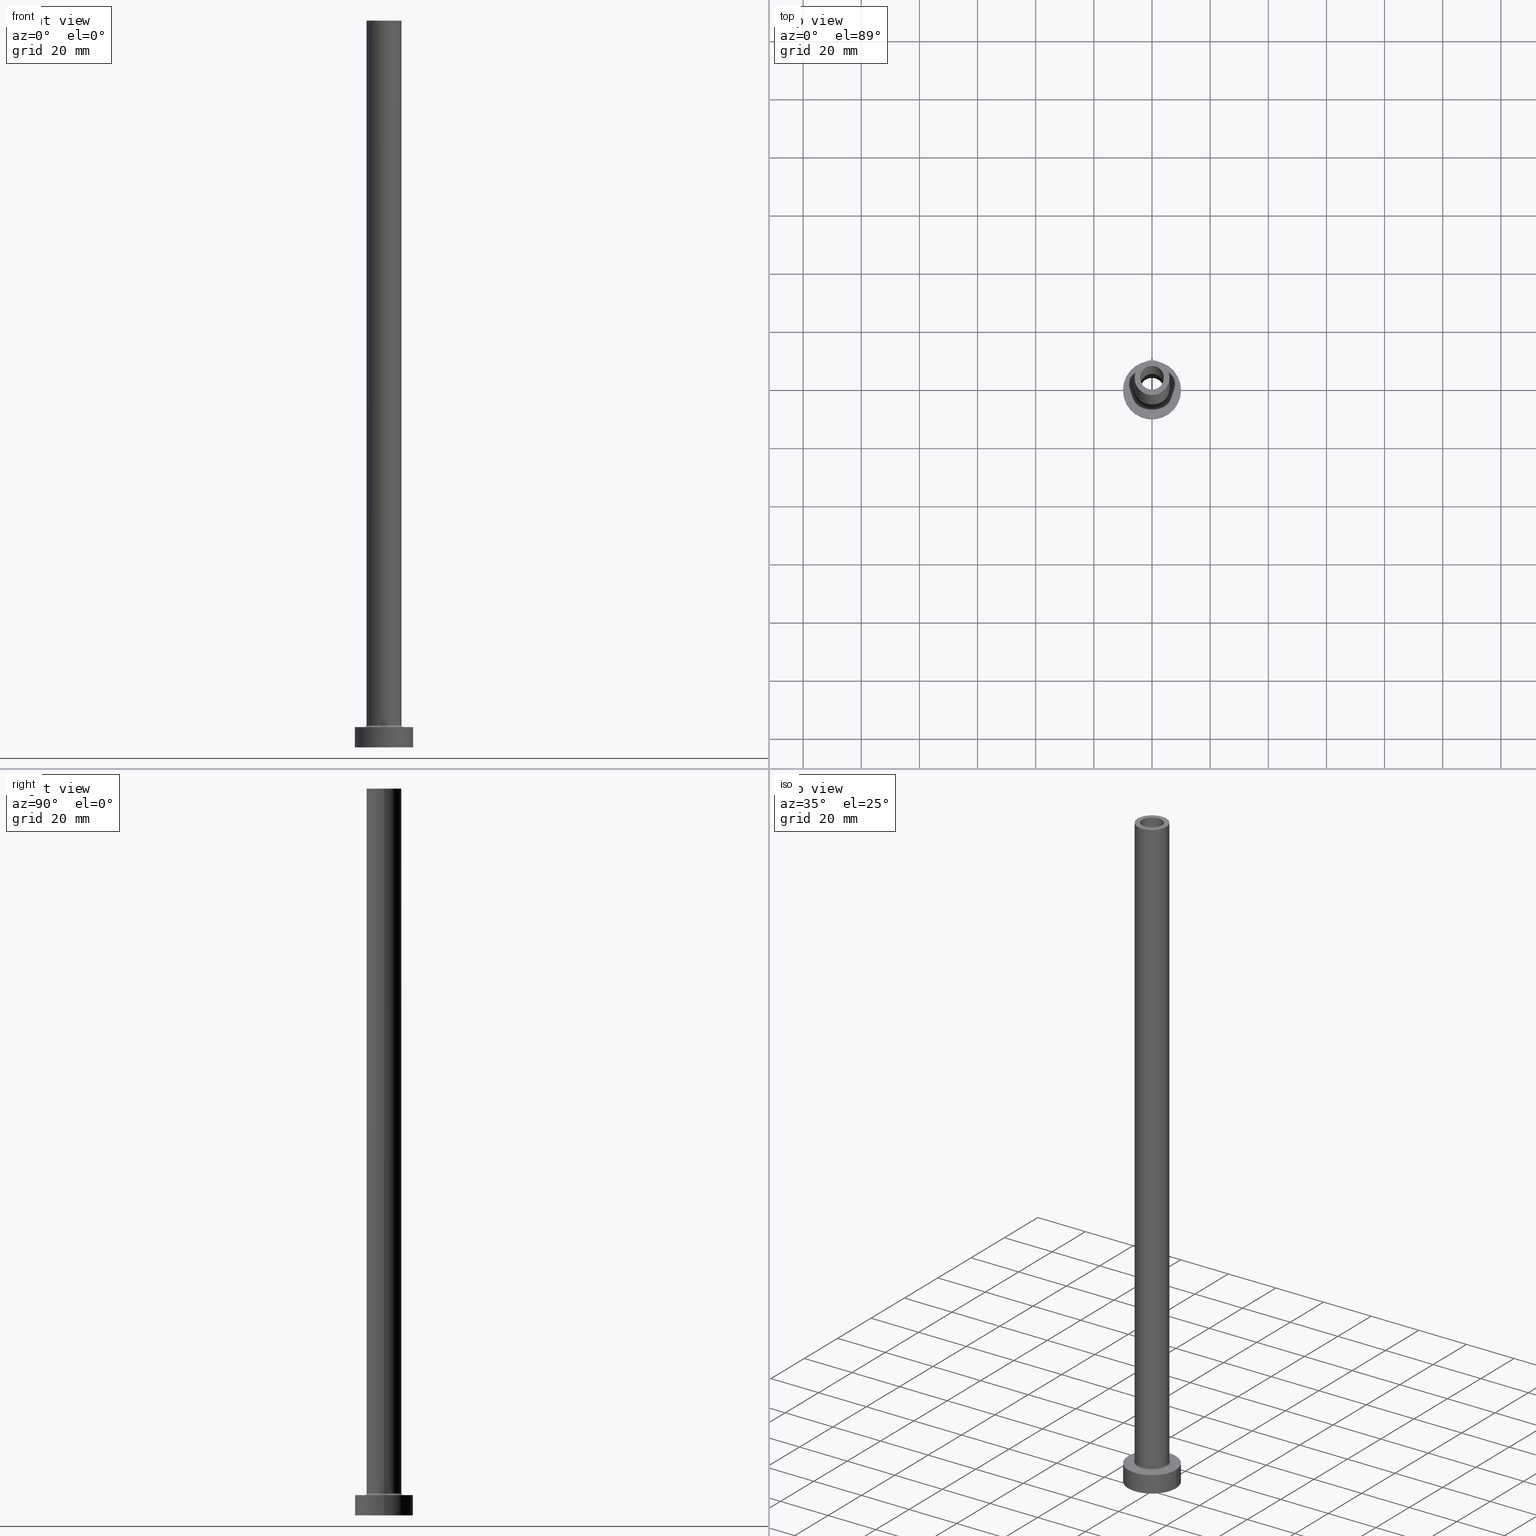
[diagram: canonical four-view strip — front | top / right | iso, engineering-drawing reading convention]
A machine part, canonical four-view strip (front | top / right | iso — engineering-drawing reading convention). The complete STEP part file that produces these views, byte-faithful:
ISO-10303-21;
HEADER;
FILE_DESCRIPTION (( 'STEP AP203' ),
    '1' );
FILE_NAME ('a4d8.STEP',
    '2023-02-13T07:45:13',
    ( '' ),
    ( '' ),
    'SwSTEP 2.0',
    'SolidWorks 2019',
    '' );
FILE_SCHEMA (( 'CONFIG_CONTROL_DESIGN' ));
ENDSEC;

DATA;
#1 = VERTEX_POINT ( 'NONE', #51 ) ;
#2 = CALENDAR_DATE ( 2023, 13, 2 ) ;
#3 = ORIENTED_EDGE ( 'NONE', *, *, #453, .T. ) ;
#4 = AXIS2_PLACEMENT_3D ( 'NONE', #176, #42, #102 ) ;
#5 = ORIENTED_EDGE ( 'NONE', *, *, #309, .T. ) ;
#6 = DIRECTION ( 'NONE',  ( 0.000000000000000000, 0.000000000000000000, -1.000000000000000000 ) ) ;
#7 = AXIS2_PLACEMENT_3D ( 'NONE', #166, #17, #138 ) ;
#8 = EDGE_CURVE ( 'NONE', #112, #48, #203, .T. ) ;
#9 = VERTEX_POINT ( 'NONE', #168 ) ;
#10 = DIRECTION ( 'NONE',  ( 1.000000000000000000, 0.000000000000000000, 0.000000000000000000 ) ) ;
#11 = ORIENTED_EDGE ( 'NONE', *, *, #41, .T. ) ;
#12 = EDGE_CURVE ( 'NONE', #48, #321, #237, .T. ) ;
#13 = CARTESIAN_POINT ( 'NONE',  ( -10.00000000000000000, 0.000000000000000000, 7.000000000000000000 ) ) ;
#14 = CARTESIAN_POINT ( 'NONE',  ( 0.000000000000000000, 0.000000000000000000, 7.000000000000000000 ) ) ;
#15 = DIRECTION ( 'NONE',  ( 1.000000000000000000, 0.000000000000000000, 0.000000000000000000 ) ) ;
#16 = DIRECTION ( 'NONE',  ( 0.000000000000000000, 0.000000000000000000, 1.000000000000000000 ) ) ;
#17 = DIRECTION ( 'NONE',  ( 0.000000000000000000, 0.000000000000000000, 1.000000000000000000 ) ) ;
#18 = CARTESIAN_POINT ( 'NONE',  ( 0.000000000000000000, 0.000000000000000000, 0.000000000000000000 ) ) ;
#19 = DIRECTION ( 'NONE',  ( -0.000000000000000000, -0.000000000000000000, -1.000000000000000000 ) ) ;
#20 = LOCAL_TIME ( 8, 45, 13.00000000000000000, #211 ) ;
#21 = CARTESIAN_POINT ( 'NONE',  ( 0.000000000000000000, 0.000000000000000000, 250.0000000000000000 ) ) ;
#22 = PLANE ( 'NONE',  #331 ) ;
#23 = EDGE_CURVE ( 'NONE', #118, #254, #277, .T. ) ;
#24 = VECTOR ( 'NONE', #346, 1000.000000000000000 ) ;
#25 = CARTESIAN_POINT ( 'NONE',  ( 10.00000000000000000, 1.224646799147353256E-15, 7.000000000000000000 ) ) ;
#26 = PLANE ( 'NONE',  #4 ) ;
#27 = DATE_AND_TIME ( #179, #113 ) ;
#28 = VERTEX_POINT ( 'NONE', #452 ) ;
#29 = CARTESIAN_POINT ( 'NONE',  ( 0.000000000000000000, 0.000000000000000000, 205.0000000000000284 ) ) ;
#30 = ORIENTED_EDGE ( 'NONE', *, *, #23, .F. ) ;
#31 = EDGE_CURVE ( 'NONE', #300, #48, #139, .T. ) ;
#32 = CIRCLE ( 'NONE', #285, 4.250000000000000000 ) ;
#33 = CYLINDRICAL_SURFACE ( 'NONE', #361, 6.000000000000000888 ) ;
#34 = AXIS2_PLACEMENT_3D ( 'NONE', #173, #204, #91 ) ;
#35 = DATE_AND_TIME ( #218, #416 ) ;
#36 = ORIENTED_EDGE ( 'NONE', *, *, #84, .F. ) ;
#37 = APPROVAL_ROLE ( '' ) ;
#38 = VERTEX_POINT ( 'NONE', #267 ) ;
#39 = PRODUCT_DEFINITION_FORMATION_WITH_SPECIFIED_SOURCE ( 'LIBOVOLN�', '', #298, .NOT_KNOWN. ) ;
#40 = ORIENTED_EDGE ( 'NONE', *, *, #121, .T. ) ;
#41 = EDGE_CURVE ( 'NONE', #82, #254, #32, .T. ) ;
#42 = DIRECTION ( 'NONE',  ( 0.000000000000000000, 0.000000000000000000, 1.000000000000000000 ) ) ;
#43 = APPROVAL_PERSON_ORGANIZATION ( #351, #383, #286 ) ;
#44 = AXIS2_PLACEMENT_3D ( 'NONE', #348, #178, #320 ) ;
#45 = ORIENTED_EDGE ( 'NONE', *, *, #94, .T. ) ;
#46 = AXIS2_PLACEMENT_3D ( 'NONE', #198, #313, #242 ) ;
#47 = CIRCLE ( 'NONE', #436, 6.000000000000000888 ) ;
#48 = VERTEX_POINT ( 'NONE', #271 ) ;
#49 = ADVANCED_FACE ( 'NONE', ( #347 ), #127, .T. ) ;
#50 = PRODUCT_DEFINITION_SHAPE ( 'NONE', 'NONE',  #431 ) ;
#51 = CARTESIAN_POINT ( 'NONE',  ( -4.099999999999999645, 0.000000000000000000, 250.0000000000000000 ) ) ;
#52 = CARTESIAN_POINT ( 'NONE',  ( 10.00000000000000000, 1.224646799147353256E-15, 0.000000000000000000 ) ) ;
#53 = DIRECTION ( 'NONE',  ( -1.000000000000000000, 0.000000000000000000, 0.000000000000000000 ) ) ;
#54 = AXIS2_PLACEMENT_3D ( 'NONE', #163, #451, #305 ) ;
#55 = DIRECTION ( 'NONE',  ( -1.000000000000000000, 0.000000000000000000, 0.000000000000000000 ) ) ;
#56 = CARTESIAN_POINT ( 'NONE',  ( -6.000000000000000888, 0.000000000000000000, 250.0000000000000000 ) ) ;
#57 = TOROIDAL_SURFACE ( 'NONE', #123, 6.700000000000001066, 0.6999999999999999556 ) ;
#58 = CARTESIAN_POINT ( 'NONE',  ( 4.099999999999999645, 5.021051876504146399E-16, 250.0000000000000000 ) ) ;
#59 = EDGE_CURVE ( 'NONE', #117, #73, #269, .T. ) ;
#60 = FACE_OUTER_BOUND ( 'NONE', #70, .T. ) ;
#61 = DIRECTION ( 'NONE',  ( 0.000000000000000000, 0.000000000000000000, 1.000000000000000000 ) ) ;
#62 = CIRCLE ( 'NONE', #7, 4.250000000000000000 ) ;
#63 =( NAMED_UNIT ( * ) SI_UNIT ( $, .STERADIAN. ) SOLID_ANGLE_UNIT ( ) );
#64 = DIRECTION ( 'NONE',  ( -0.000000000000000000, -0.000000000000000000, -1.000000000000000000 ) ) ;
#65 = CIRCLE ( 'NONE', #125, 10.00000000000000000 ) ;
#66 = SHAPE_DEFINITION_REPRESENTATION ( #50, #446 ) ;
#67 = DIRECTION ( 'NONE',  ( -1.000000000000000000, 0.000000000000000000, 0.000000000000000000 ) ) ;
#68 = ADVANCED_FACE ( 'NONE', ( #99, #140 ), #22, .T. ) ;
#69 = PERSON_AND_ORGANIZATION ( #264, #119 ) ;
#70 = EDGE_LOOP ( 'NONE', ( #354, #97 ) ) ;
#71 = CYLINDRICAL_SURFACE ( 'NONE', #449, 4.099999999999999645 ) ;
#72 = PERSON_AND_ORGANIZATION ( #264, #119 ) ;
#73 = VERTEX_POINT ( 'NONE', #171 ) ;
#74 = MECHANICAL_CONTEXT ( 'NONE', #192, 'mechanical' ) ;
#75 = FACE_OUTER_BOUND ( 'NONE', #137, .T. ) ;
#76 = COORDINATED_UNIVERSAL_TIME_OFFSET ( 1, 0, .AHEAD. ) ;
#77 = ORIENTED_EDGE ( 'NONE', *, *, #59, .F. ) ;
#78 = PERSON_AND_ORGANIZATION ( #264, #119 ) ;
#79 = AXIS2_PLACEMENT_3D ( 'NONE', #444, #304, #384 ) ;
#80 = VERTEX_POINT ( 'NONE', #13 ) ;
#81 = ORIENTED_EDGE ( 'NONE', *, *, #441, .T. ) ;
#82 = VERTEX_POINT ( 'NONE', #411 ) ;
#83 = FACE_BOUND ( 'NONE', #336, .T. ) ;
#84 = EDGE_CURVE ( 'NONE', #28, #394, #306, .T. ) ;
#85 = ORIENTED_EDGE ( 'NONE', *, *, #165, .F. ) ;
#86 = AXIS2_PLACEMENT_3D ( 'NONE', #272, #401, #395 ) ;
#87 = DIRECTION ( 'NONE',  ( 0.000000000000000000, 0.000000000000000000, 1.000000000000000000 ) ) ;
#88 = DIRECTION ( 'NONE',  ( 0.000000000000000000, 0.000000000000000000, 1.000000000000000000 ) ) ;
#89 = CIRCLE ( 'NONE', #226, 0.7000000000000000666 ) ;
#90 = CYLINDRICAL_SURFACE ( 'NONE', #216, 4.250000000000000000 ) ;
#91 = DIRECTION ( 'NONE',  ( 0.000000000000000000, 0.000000000000000000, -1.000000000000000000 ) ) ;
#92 = SECURITY_CLASSIFICATION ( '', '', #289 ) ;
#93 = CARTESIAN_POINT ( 'NONE',  ( 0.000000000000000000, 0.000000000000000000, 250.0000000000000000 ) ) ;
#94 = EDGE_CURVE ( 'NONE', #38, #394, #374, .T. ) ;
#95 = DIRECTION ( 'NONE',  ( 1.000000000000000000, 0.000000000000000000, 0.000000000000000000 ) ) ;
#96 = DIRECTION ( 'NONE',  ( 1.000000000000000000, 0.000000000000000000, 0.000000000000000000 ) ) ;
#97 = ORIENTED_EDGE ( 'NONE', *, *, #391, .T. ) ;
#98 = CARTESIAN_POINT ( 'NONE',  ( 0.000000000000000000, 0.000000000000000000, 7.000000000000000000 ) ) ;
#99 = FACE_BOUND ( 'NONE', #196, .T. ) ;
#100 = APPROVAL_PERSON_ORGANIZATION ( #78, #301, #37 ) ;
#101 = ORIENTED_EDGE ( 'NONE', *, *, #441, .F. ) ;
#102 = DIRECTION ( 'NONE',  ( 1.000000000000000000, 0.000000000000000000, -0.000000000000000000 ) ) ;
#103 = ADVANCED_FACE ( 'NONE', ( #136 ), #199, .F. ) ;
#104 = CIRCLE ( 'NONE', #44, 6.000000000000000888 ) ;
#105 = DIRECTION ( 'NONE',  ( 1.000000000000000000, 0.000000000000000000, 0.000000000000000000 ) ) ;
#106 = DIRECTION ( 'NONE',  ( 0.000000000000000000, 0.000000000000000000, -1.000000000000000000 ) ) ;
#107 = CALENDAR_DATE ( 2023, 13, 2 ) ;
#108 = ORIENTED_EDGE ( 'NONE', *, *, #148, .F. ) ;
#109 = APPLICATION_PROTOCOL_DEFINITION ( 'international standard', 'config_control_design', 1994, #192 ) ;
#110 = CARTESIAN_POINT ( 'NONE',  ( 0.000000000000000000, 0.000000000000000000, 205.0000000000000284 ) ) ;
#111 = PERSON_AND_ORGANIZATION ( #264, #119 ) ;
#112 = VERTEX_POINT ( 'NONE', #201 ) ;
#113 = LOCAL_TIME ( 8, 45, 13.00000000000000000, #353 ) ;
#114 = DATE_TIME_ROLE ( 'classification_date' ) ;
#115 = ORIENTED_EDGE ( 'NONE', *, *, #318, .F. ) ;
#116 = EDGE_CURVE ( 'NONE', #295, #112, #47, .T. ) ;
#117 = VERTEX_POINT ( 'NONE', #230 ) ;
#118 = VERTEX_POINT ( 'NONE', #369 ) ;
#119 = ORGANIZATION ( 'NEUR�EN�', 'NEUR�EN�', '' ) ;
#120 = CARTESIAN_POINT ( 'NONE',  ( 0.000000000000000000, 0.000000000000000000, 250.0000000000000000 ) ) ;
#121 = EDGE_CURVE ( 'NONE', #80, #38, #343, .T. ) ;
#122 = AXIS2_PLACEMENT_3D ( 'NONE', #420, #217, #206 ) ;
#123 = AXIS2_PLACEMENT_3D ( 'NONE', #368, #270, #10 ) ;
#124 = ORIENTED_EDGE ( 'NONE', *, *, #31, .F. ) ;
#125 = AXIS2_PLACEMENT_3D ( 'NONE', #280, #307, #105 ) ;
#126 = FACE_BOUND ( 'NONE', #457, .T. ) ;
#127 = CYLINDRICAL_SURFACE ( 'NONE', #262, 6.000000000000000888 ) ;
#128 = FACE_OUTER_BOUND ( 'NONE', #433, .T. ) ;
#129 = FACE_BOUND ( 'NONE', #392, .T. ) ;
#130 = DIRECTION ( 'NONE',  ( 0.000000000000000000, 0.000000000000000000, -1.000000000000000000 ) ) ;
#131 = DIRECTION ( 'NONE',  ( -0.000000000000000000, -0.000000000000000000, -1.000000000000000000 ) ) ;
#132 = DIRECTION ( 'NONE',  ( 1.000000000000000000, 0.000000000000000000, -0.000000000000000000 ) ) ;
#133 = ADVANCED_FACE ( 'NONE', ( #129, #236 ), #169, .F. ) ;
#134 = DIRECTION ( 'NONE',  ( 0.000000000000000000, 0.000000000000000000, 1.000000000000000000 ) ) ;
#135 = UNCERTAINTY_MEASURE_WITH_UNIT (LENGTH_MEASURE( 1.000000000000000082E-05 ), #235, 'distance_accuracy_value', 'NONE');
#136 = FACE_OUTER_BOUND ( 'NONE', #260, .T. ) ;
#137 = EDGE_LOOP ( 'NONE', ( #329, #222, #223, #412 ) ) ;
#138 = DIRECTION ( 'NONE',  ( 1.000000000000000000, 0.000000000000000000, 0.000000000000000000 ) ) ;
#139 = CIRCLE ( 'NONE', #393, 6.000000000000000888 ) ;
#140 = FACE_OUTER_BOUND ( 'NONE', #221, .T. ) ;
#141 = CC_DESIGN_PERSON_AND_ORGANIZATION_ASSIGNMENT ( #355, #244, ( #298 ) ) ;
#142 = DIRECTION ( 'NONE',  ( -0.000000000000000000, -0.000000000000000000, -1.000000000000000000 ) ) ;
#143 = CARTESIAN_POINT ( 'NONE',  ( -6.000000000000000888, 0.000000000000000000, 250.0000000000000000 ) ) ;
#144 = APPLICATION_PROTOCOL_DEFINITION ( 'international standard', 'config_control_design', 1994, #428 ) ;
#145 = ORIENTED_EDGE ( 'NONE', *, *, #23, .T. ) ;
#146 = VECTOR ( 'NONE', #19, 1000.000000000000000 ) ;
#147 = APPROVAL_DATE_TIME ( #27, #383 ) ;
#148 = EDGE_CURVE ( 'NONE', #254, #82, #248, .T. ) ;
#149 = APPROVAL_STATUS ( 'not_yet_approved' ) ;
#150 = ORIENTED_EDGE ( 'NONE', *, *, #273, .T. ) ;
#151 = PERSON_AND_ORGANIZATION_ROLE ( 'creator' ) ;
#152 = ORIENTED_EDGE ( 'NONE', *, *, #215, .F. ) ;
#153 = EDGE_LOOP ( 'NONE', ( #124, #375, #101, #195 ) ) ;
#154 = ADVANCED_FACE ( 'NONE', ( #335 ), #57, .F. ) ;
#155 = DIRECTION ( 'NONE',  ( 0.000000000000000000, 0.000000000000000000, -1.000000000000000000 ) ) ;
#156 = CC_DESIGN_APPROVAL ( #301, ( #92 ) ) ;
#157 = VECTOR ( 'NONE', #337, 1000.000000000000000 ) ;
#158 = EDGE_LOOP ( 'NONE', ( #344, #314, #183, #152 ) ) ;
#159 = ADVANCED_FACE ( 'NONE', ( #126, #60 ), #167, .T. ) ;
#160 = DIRECTION ( 'NONE',  ( 0.000000000000000000, 0.000000000000000000, 1.000000000000000000 ) ) ;
#161 = CC_DESIGN_SECURITY_CLASSIFICATION ( #92, ( #39 ) ) ;
#162 = ORIENTED_EDGE ( 'NONE', *, *, #266, .F. ) ;
#163 = CARTESIAN_POINT ( 'NONE',  ( 0.000000000000000000, 0.000000000000000000, 7.000000000000000000 ) ) ;
#164 = CARTESIAN_POINT ( 'NONE',  ( -10.00000000000000000, 0.000000000000000000, 7.000000000000000000 ) ) ;
#165 = EDGE_CURVE ( 'NONE', #1, #117, #350, .T. ) ;
#166 = CARTESIAN_POINT ( 'NONE',  ( 0.000000000000000000, 0.000000000000000000, 205.0000000000000284 ) ) ;
#167 = PLANE ( 'NONE',  #432 ) ;
#168 = CARTESIAN_POINT ( 'NONE',  ( -4.099999999999999645, 0.000000000000000000, 205.0000000000000284 ) ) ;
#169 = PLANE ( 'NONE',  #86 ) ;
#170 = FACE_OUTER_BOUND ( 'NONE', #324, .T. ) ;
#171 = CARTESIAN_POINT ( 'NONE',  ( 4.099999999999999645, 5.021051876504146399E-16, 205.0000000000000284 ) ) ;
#172 = EDGE_CURVE ( 'NONE', #117, #1, #210, .T. ) ;
#173 = CARTESIAN_POINT ( 'NONE',  ( 6.700000000000001066, 0.000000000000000000, 7.700000000000012612 ) ) ;
#174 = CARTESIAN_POINT ( 'NONE',  ( -6.000000000000000888, 0.000000000000000000, 7.700000000000012612 ) ) ;
#175 = DIRECTION ( 'NONE',  ( 1.000000000000000000, 0.000000000000000000, 0.000000000000000000 ) ) ;
#176 = CARTESIAN_POINT ( 'NONE',  ( 0.000000000000000000, 0.000000000000000000, 0.000000000000000000 ) ) ;
#177 = CARTESIAN_POINT ( 'NONE',  ( 0.000000000000000000, 0.000000000000000000, 0.000000000000000000 ) ) ;
#178 = DIRECTION ( 'NONE',  ( 0.000000000000000000, 0.000000000000000000, 1.000000000000000000 ) ) ;
#179 = CALENDAR_DATE ( 2023, 13, 2 ) ;
#180 = ADVANCED_FACE ( 'NONE', ( #170 ), #302, .T. ) ;
#181 = AXIS2_PLACEMENT_3D ( 'NONE', #405, #134, #15 ) ;
#182 = DIRECTION ( 'NONE',  ( -0.000000000000000000, -0.000000000000000000, -1.000000000000000000 ) ) ;
#183 = ORIENTED_EDGE ( 'NONE', *, *, #309, .F. ) ;
#184 = COORDINATED_UNIVERSAL_TIME_OFFSET ( 1, 0, .AHEAD. ) ;
#185 = ORIENTED_EDGE ( 'NONE', *, *, #172, .F. ) ;
#186 = APPROVAL_PERSON_ORGANIZATION ( #454, #325, #323 ) ;
#187 = ADVANCED_FACE ( 'NONE', ( #440 ), #371, .F. ) ;
#188 = ORIENTED_EDGE ( 'NONE', *, *, #41, .F. ) ;
#189 = AXIS2_PLACEMENT_3D ( 'NONE', #21, #373, #442 ) ;
#190 = AXIS2_PLACEMENT_3D ( 'NONE', #382, #130, #275 ) ;
#191 = CIRCLE ( 'NONE', #328, 4.099999999999999645 ) ;
#192 = APPLICATION_CONTEXT ( 'configuration controlled 3d designs of mechanical parts and assemblies' ) ;
#193 = EDGE_CURVE ( 'NONE', #394, #38, #423, .T. ) ;
#194 = ORIENTED_EDGE ( 'NONE', *, *, #396, .F. ) ;
#195 = ORIENTED_EDGE ( 'NONE', *, *, #12, .F. ) ;
#196 = EDGE_LOOP ( 'NONE', ( #85, #185 ) ) ;
#197 = CARTESIAN_POINT ( 'NONE',  ( 0.000000000000000000, 0.000000000000000000, 0.000000000000000000 ) ) ;
#198 = CARTESIAN_POINT ( 'NONE',  ( 0.000000000000000000, 0.000000000000000000, 0.000000000000000000 ) ) ;
#199 = TOROIDAL_SURFACE ( 'NONE', #79, 6.700000000000001066, 0.6999999999999999556 ) ;
#200 = DIRECTION ( 'NONE',  ( 1.000000000000000000, 0.000000000000000000, 0.000000000000000000 ) ) ;
#201 = CARTESIAN_POINT ( 'NONE',  ( 6.000000000000000888, 7.347880794884120722E-16, 250.0000000000000000 ) ) ;
#202 = EDGE_LOOP ( 'NONE', ( #367, #227, #397, #303 ) ) ;
#203 = LINE ( 'NONE', #406, #332 ) ;
#204 = DIRECTION ( 'NONE',  ( 0.000000000000000000, -1.000000000000000000, 0.000000000000000000 ) ) ;
#205 = EDGE_CURVE ( 'NONE', #80, #28, #399, .T. ) ;
#206 = DIRECTION ( 'NONE',  ( 1.000000000000000000, 0.000000000000000000, 0.000000000000000000 ) ) ;
#207 = PERSON_AND_ORGANIZATION_ROLE ( 'design_supplier' ) ;
#208 = ORIENTED_EDGE ( 'NONE', *, *, #400, .F. ) ;
#209 = DIRECTION ( 'NONE',  ( -1.000000000000000000, 1.224646799147353454E-16, 0.000000000000000000 ) ) ;
#210 = CIRCLE ( 'NONE', #322, 4.099999999999999645 ) ;
#211 = COORDINATED_UNIVERSAL_TIME_OFFSET ( 1, 0, .AHEAD. ) ;
#212 = DIRECTION ( 'NONE',  ( 1.000000000000000000, 0.000000000000000000, 0.000000000000000000 ) ) ;
#213 = CALENDAR_DATE ( 2023, 13, 2 ) ;
#214 = ORIENTED_EDGE ( 'NONE', *, *, #193, .F. ) ;
#215 = EDGE_CURVE ( 'NONE', #1, #9, #238, .T. ) ;
#216 = AXIS2_PLACEMENT_3D ( 'NONE', #316, #6, #459 ) ;
#217 = DIRECTION ( 'NONE',  ( -0.000000000000000000, -0.000000000000000000, -1.000000000000000000 ) ) ;
#218 = CALENDAR_DATE ( 2023, 13, 2 ) ;
#219 = ORIENTED_EDGE ( 'NONE', *, *, #266, .T. ) ;
#220 = APPROVAL_STATUS ( 'not_yet_approved' ) ;
#221 = EDGE_LOOP ( 'NONE', ( #293, #402 ) ) ;
#222 = ORIENTED_EDGE ( 'NONE', *, *, #8, .T. ) ;
#223 = ORIENTED_EDGE ( 'NONE', *, *, #356, .T. ) ;
#224 = FACE_OUTER_BOUND ( 'NONE', #422, .T. ) ;
#225 = ADVANCED_FACE ( 'NONE', ( #312 ), #403, .T. ) ;
#226 = AXIS2_PLACEMENT_3D ( 'NONE', #245, #419, #209 ) ;
#227 = ORIENTED_EDGE ( 'NONE', *, *, #116, .F. ) ;
#228 = AXIS2_PLACEMENT_3D ( 'NONE', #197, #131, #342 ) ;
#229 = CARTESIAN_POINT ( 'NONE',  ( -4.250000000000000000, 0.000000000000000000, 0.000000000000000000 ) ) ;
#230 = CARTESIAN_POINT ( 'NONE',  ( 4.099999999999999645, 5.021051876504146399E-16, 250.0000000000000000 ) ) ;
#231 = CC_DESIGN_DATE_AND_TIME_ASSIGNMENT ( #35, #114, ( #92 ) ) ;
#232 = AXIS2_PLACEMENT_3D ( 'NONE', #29, #315, #175 ) ;
#233 = CARTESIAN_POINT ( 'NONE',  ( 0.000000000000000000, 0.000000000000000000, 217.0208152801713197 ) ) ;
#234 = DIRECTION ( 'NONE',  ( -0.000000000000000000, -0.000000000000000000, -1.000000000000000000 ) ) ;
#235 =( LENGTH_UNIT ( ) NAMED_UNIT ( * ) SI_UNIT ( .MILLI., .METRE. ) );
#236 = FACE_OUTER_BOUND ( 'NONE', #461, .T. ) ;
#237 = CIRCLE ( 'NONE', #34, 0.7000000000000000666 ) ;
#238 = LINE ( 'NONE', #379, #157 ) ;
#239 = DIRECTION ( 'NONE',  ( 1.000000000000000000, 0.000000000000000000, 0.000000000000000000 ) ) ;
#240 = DIRECTION ( 'NONE',  ( 1.000000000000000000, 0.000000000000000000, 0.000000000000000000 ) ) ;
#241 = DIRECTION ( 'NONE',  ( -0.000000000000000000, -0.000000000000000000, -1.000000000000000000 ) ) ;
#242 = DIRECTION ( 'NONE',  ( 1.000000000000000000, 0.000000000000000000, 0.000000000000000000 ) ) ;
#243 = CC_DESIGN_APPROVAL ( #325, ( #431 ) ) ;
#244 = PERSON_AND_ORGANIZATION_ROLE ( 'design_owner' ) ;
#245 = CARTESIAN_POINT ( 'NONE',  ( -6.700000000000001066, 8.205133554287267548E-16, 7.700000000000012612 ) ) ;
#246 = DIRECTION ( 'NONE',  ( -1.000000000000000000, 0.000000000000000000, 0.000000000000000000 ) ) ;
#247 = DIRECTION ( 'NONE',  ( -0.000000000000000000, -0.000000000000000000, -1.000000000000000000 ) ) ;
#248 = CIRCLE ( 'NONE', #228, 4.250000000000000000 ) ;
#249 = PERSON_AND_ORGANIZATION_ROLE ( 'creator' ) ;
#250 = ORIENTED_EDGE ( 'NONE', *, *, #318, .T. ) ;
#251 = CARTESIAN_POINT ( 'NONE',  ( 4.250000000000000000, 5.204748896376250699E-16, 217.0208152801713197 ) ) ;
#252 = VECTOR ( 'NONE', #142, 1000.000000000000000 ) ;
#253 = PERSON_AND_ORGANIZATION_ROLE ( 'classification_officer' ) ;
#254 = VERTEX_POINT ( 'NONE', #229 ) ;
#255 = CIRCLE ( 'NONE', #122, 6.700000000000001066 ) ;
#256 = EDGE_LOOP ( 'NONE', ( #259, #386, #430, #265 ) ) ;
#257 = VECTOR ( 'NONE', #372, 1000.000000000000000 ) ;
#258 = ADVANCED_FACE ( 'NONE', ( #128 ), #90, .F. ) ;
#259 = ORIENTED_EDGE ( 'NONE', *, *, #391, .F. ) ;
#260 = EDGE_LOOP ( 'NONE', ( #194, #310, #377, #352 ) ) ;
#261 = DIRECTION ( 'NONE',  ( 1.000000000000000000, 0.000000000000000000, 0.000000000000000000 ) ) ;
#262 = AXIS2_PLACEMENT_3D ( 'NONE', #308, #448, #55 ) ;
#263 = ADVANCED_FACE ( 'NONE', ( #362 ), #71, .F. ) ;
#264 = PERSON ( 'NEUR�EN�', 'NEUR�EN�', 'NEUR�EN�', ('NEUR�EN�'), ('NEUR�EN�'), ('NEUR�EN�') ) ;
#265 = ORIENTED_EDGE ( 'NONE', *, *, #121, .F. ) ;
#266 = EDGE_CURVE ( 'NONE', #73, #9, #191, .T. ) ;
#267 = CARTESIAN_POINT ( 'NONE',  ( -10.00000000000000000, 0.000000000000000000, 0.000000000000000000 ) ) ;
#268 = CARTESIAN_POINT ( 'NONE',  ( 0.000000000000000000, 0.000000000000000000, 7.000000000000000000 ) ) ;
#269 = LINE ( 'NONE', #58, #24 ) ;
#270 = DIRECTION ( 'NONE',  ( 0.000000000000000000, 0.000000000000000000, 1.000000000000000000 ) ) ;
#271 = CARTESIAN_POINT ( 'NONE',  ( 6.000000000000000888, 7.347880794884120722E-16, 7.700000000000012612 ) ) ;
#272 = CARTESIAN_POINT ( 'NONE',  ( 0.000000000000000000, 0.000000000000000000, 205.0000000000000284 ) ) ;
#273 = EDGE_CURVE ( 'NONE', #438, #321, #255, .T. ) ;
#274 = CLOSED_SHELL ( 'NONE', ( #458, #258, #154, #341, #225, #180, #159, #366, #49, #68, #103, #187, #133, #263 ) ) ;
#275 = DIRECTION ( 'NONE',  ( -1.000000000000000000, 0.000000000000000000, 0.000000000000000000 ) ) ;
#276 = DIRECTION ( 'NONE',  ( 0.000000000000000000, 0.000000000000000000, 1.000000000000000000 ) ) ;
#277 = LINE ( 'NONE', #380, #299 ) ;
#278 = CARTESIAN_POINT ( 'NONE',  ( 0.000000000000000000, 0.000000000000000000, 250.0000000000000000 ) ) ;
#279 = DIRECTION ( 'NONE',  ( 0.000000000000000000, 0.000000000000000000, 1.000000000000000000 ) ) ;
#280 = CARTESIAN_POINT ( 'NONE',  ( 0.000000000000000000, 0.000000000000000000, 7.000000000000000000 ) ) ;
#281 = AXIS2_PLACEMENT_3D ( 'NONE', #417, #279, #261 ) ;
#282 = MANIFOLD_SOLID_BREP ( 'Odebrat vysunut�m4', #274 ) ;
#283 = CC_DESIGN_PERSON_AND_ORGANIZATION_ASSIGNMENT ( #69, #151, ( #431 ) ) ;
#284 = CARTESIAN_POINT ( 'NONE',  ( 0.000000000000000000, 0.000000000000000000, 205.0000000000000284 ) ) ;
#285 = AXIS2_PLACEMENT_3D ( 'NONE', #414, #234, #96 ) ;
#286 = APPROVAL_ROLE ( '' ) ;
#287 = AXIS2_PLACEMENT_3D ( 'NONE', #233, #340, #53 ) ;
#288 = DIRECTION ( 'NONE',  ( 0.000000000000000000, 0.000000000000000000, 1.000000000000000000 ) ) ;
#289 = SECURITY_CLASSIFICATION_LEVEL ( 'unclassified' ) ;
#290 = ORIENTED_EDGE ( 'NONE', *, *, #205, .F. ) ;
#291 = VECTOR ( 'NONE', #106, 1000.000000000000000 ) ;
#292 = COORDINATED_UNIVERSAL_TIME_OFFSET ( 1, 0, .AHEAD. ) ;
#293 = ORIENTED_EDGE ( 'NONE', *, *, #116, .T. ) ;
#294 = EDGE_CURVE ( 'NONE', #112, #295, #104, .T. ) ;
#295 = VERTEX_POINT ( 'NONE', #143 ) ;
#296 = LINE ( 'NONE', #251, #291 ) ;
#297 =( GEOMETRIC_REPRESENTATION_CONTEXT ( 3 ) GLOBAL_UNCERTAINTY_ASSIGNED_CONTEXT ( ( #135 ) ) GLOBAL_UNIT_ASSIGNED_CONTEXT ( ( #235, #345, #63 ) ) REPRESENTATION_CONTEXT ( 'NONE', 'WORKASPACE' ) );
#298 = PRODUCT ( 'a4d8', 'a4d8', '', ( #74 ) ) ;
#299 = VECTOR ( 'NONE', #409, 1000.000000000000000 ) ;
#300 = VERTEX_POINT ( 'NONE', #174 ) ;
#301 = APPROVAL ( #220, 'NEUR�EN�' ) ;
#302 = CYLINDRICAL_SURFACE ( 'NONE', #363, 10.00000000000000000 ) ;
#303 = ORIENTED_EDGE ( 'NONE', *, *, #31, .T. ) ;
#304 = DIRECTION ( 'NONE',  ( 0.000000000000000000, 0.000000000000000000, 1.000000000000000000 ) ) ;
#305 = DIRECTION ( 'NONE',  ( -1.000000000000000000, 0.000000000000000000, 0.000000000000000000 ) ) ;
#306 = LINE ( 'NONE', #25, #257 ) ;
#307 = DIRECTION ( 'NONE',  ( 0.000000000000000000, 0.000000000000000000, 1.000000000000000000 ) ) ;
#308 = CARTESIAN_POINT ( 'NONE',  ( 0.000000000000000000, 0.000000000000000000, 250.0000000000000000 ) ) ;
#309 = EDGE_CURVE ( 'NONE', #9, #73, #364, .T. ) ;
#310 = ORIENTED_EDGE ( 'NONE', *, *, #356, .F. ) ;
#311 = LINE ( 'NONE', #56, #252 ) ;
#312 = FACE_OUTER_BOUND ( 'NONE', #256, .T. ) ;
#313 = DIRECTION ( 'NONE',  ( 0.000000000000000000, 0.000000000000000000, 1.000000000000000000 ) ) ;
#314 = ORIENTED_EDGE ( 'NONE', *, *, #59, .T. ) ;
#315 = DIRECTION ( 'NONE',  ( 0.000000000000000000, 0.000000000000000000, 1.000000000000000000 ) ) ;
#316 = CARTESIAN_POINT ( 'NONE',  ( 0.000000000000000000, 0.000000000000000000, 217.0208152801713197 ) ) ;
#317 = APPROVAL_STATUS ( 'not_yet_approved' ) ;
#318 = EDGE_CURVE ( 'NONE', #455, #82, #296, .T. ) ;
#319 = DIRECTION ( 'NONE',  ( 0.000000000000000000, 0.000000000000000000, 1.000000000000000000 ) ) ;
#320 = DIRECTION ( 'NONE',  ( 1.000000000000000000, 0.000000000000000000, 0.000000000000000000 ) ) ;
#321 = VERTEX_POINT ( 'NONE', #388 ) ;
#322 = AXIS2_PLACEMENT_3D ( 'NONE', #447, #160, #200 ) ;
#323 = APPROVAL_ROLE ( '' ) ;
#324 = EDGE_LOOP ( 'NONE', ( #36, #290, #40, #45 ) ) ;
#325 = APPROVAL ( #317, 'NEUR�EN�' ) ;
#326 = DATE_AND_TIME ( #213, #20 ) ;
#327 = ORIENTED_EDGE ( 'NONE', *, *, #172, .T. ) ;
#328 = AXIS2_PLACEMENT_3D ( 'NONE', #284, #288, #212 ) ;
#329 = ORIENTED_EDGE ( 'NONE', *, *, #294, .F. ) ;
#330 = PRODUCT_RELATED_PRODUCT_CATEGORY ( 'detail', '', ( #298 ) ) ;
#331 = AXIS2_PLACEMENT_3D ( 'NONE', #404, #88, #132 ) ;
#332 = VECTOR ( 'NONE', #64, 1000.000000000000000 ) ;
#333 = EDGE_LOOP ( 'NONE', ( #115, #3, #145, #390 ) ) ;
#334 = CC_DESIGN_PERSON_AND_ORGANIZATION_ASSIGNMENT ( #72, #249, ( #39 ) ) ;
#335 = FACE_OUTER_BOUND ( 'NONE', #153, .T. ) ;
#336 = EDGE_LOOP ( 'NONE', ( #108, #188 ) ) ;
#337 = DIRECTION ( 'NONE',  ( 0.000000000000000000, 0.000000000000000000, -1.000000000000000000 ) ) ;
#338 = CARTESIAN_POINT ( 'NONE',  ( 0.000000000000000000, 0.000000000000000000, 7.700000000000012612 ) ) ;
#339 = FACE_OUTER_BOUND ( 'NONE', #158, .T. ) ;
#340 = DIRECTION ( 'NONE',  ( 0.000000000000000000, 0.000000000000000000, -1.000000000000000000 ) ) ;
#341 = ADVANCED_FACE ( 'NONE', ( #75 ), #33, .T. ) ;
#342 = DIRECTION ( 'NONE',  ( 1.000000000000000000, 0.000000000000000000, 0.000000000000000000 ) ) ;
#343 = LINE ( 'NONE', #164, #146 ) ;
#344 = ORIENTED_EDGE ( 'NONE', *, *, #165, .T. ) ;
#345 =( NAMED_UNIT ( * ) PLANE_ANGLE_UNIT ( ) SI_UNIT ( $, .RADIAN. ) );
#346 = DIRECTION ( 'NONE',  ( 0.000000000000000000, 0.000000000000000000, -1.000000000000000000 ) ) ;
#347 = FACE_OUTER_BOUND ( 'NONE', #202, .T. ) ;
#348 = CARTESIAN_POINT ( 'NONE',  ( 0.000000000000000000, 0.000000000000000000, 250.0000000000000000 ) ) ;
#349 = CC_DESIGN_PERSON_AND_ORGANIZATION_ASSIGNMENT ( #460, #207, ( #39 ) ) ;
#350 = CIRCLE ( 'NONE', #189, 4.099999999999999645 ) ;
#351 = PERSON_AND_ORGANIZATION ( #264, #119 ) ;
#352 = ORIENTED_EDGE ( 'NONE', *, *, #273, .F. ) ;
#353 = COORDINATED_UNIVERSAL_TIME_OFFSET ( 1, 0, .AHEAD. ) ;
#354 = ORIENTED_EDGE ( 'NONE', *, *, #205, .T. ) ;
#355 = PERSON_AND_ORGANIZATION ( #264, #119 ) ;
#356 = EDGE_CURVE ( 'NONE', #48, #300, #418, .T. ) ;
#357 = DATE_AND_TIME ( #107, #387 ) ;
#358 = ORIENTED_EDGE ( 'NONE', *, *, #215, .T. ) ;
#359 = LOCAL_TIME ( 8, 45, 13.00000000000000000, #184 ) ;
#360 = EDGE_LOOP ( 'NONE', ( #77, #327, #358, #162 ) ) ;
#361 = AXIS2_PLACEMENT_3D ( 'NONE', #120, #182, #246 ) ;
#362 = FACE_OUTER_BOUND ( 'NONE', #360, .T. ) ;
#363 = AXIS2_PLACEMENT_3D ( 'NONE', #98, #241, #413 ) ;
#364 = CIRCLE ( 'NONE', #427, 4.099999999999999645 ) ;
#365 = ORIENTED_EDGE ( 'NONE', *, *, #400, .T. ) ;
#366 = ADVANCED_FACE ( 'NONE', ( #83, #224 ), #26, .F. ) ;
#367 = ORIENTED_EDGE ( 'NONE', *, *, #8, .F. ) ;
#368 = CARTESIAN_POINT ( 'NONE',  ( 0.000000000000000000, 0.000000000000000000, 7.700000000000012612 ) ) ;
#369 = CARTESIAN_POINT ( 'NONE',  ( -4.250000000000000000, 0.000000000000000000, 205.0000000000000284 ) ) ;
#370 = CIRCLE ( 'NONE', #232, 4.250000000000000000 ) ;
#371 = CYLINDRICAL_SURFACE ( 'NONE', #287, 4.250000000000000000 ) ;
#372 = DIRECTION ( 'NONE',  ( -0.000000000000000000, -0.000000000000000000, -1.000000000000000000 ) ) ;
#373 = DIRECTION ( 'NONE',  ( 0.000000000000000000, 0.000000000000000000, 1.000000000000000000 ) ) ;
#374 = CIRCLE ( 'NONE', #46, 10.00000000000000000 ) ;
#375 = ORIENTED_EDGE ( 'NONE', *, *, #396, .T. ) ;
#376 = AXIS2_PLACEMENT_3D ( 'NONE', #18, #87, #95 ) ;
#377 = ORIENTED_EDGE ( 'NONE', *, *, #12, .T. ) ;
#378 = CARTESIAN_POINT ( 'NONE',  ( -6.700000000000001066, 8.205133554287267548E-16, 7.000000000000006217 ) ) ;
#379 = CARTESIAN_POINT ( 'NONE',  ( -4.099999999999999645, 0.000000000000000000, 250.0000000000000000 ) ) ;
#380 = CARTESIAN_POINT ( 'NONE',  ( -4.250000000000000000, 0.000000000000000000, 217.0208152801713197 ) ) ;
#381 = CIRCLE ( 'NONE', #435, 6.700000000000001066 ) ;
#382 = CARTESIAN_POINT ( 'NONE',  ( 0.000000000000000000, 0.000000000000000000, 250.0000000000000000 ) ) ;
#383 = APPROVAL ( #149, 'NEUR�EN�' ) ;
#384 = DIRECTION ( 'NONE',  ( 1.000000000000000000, 0.000000000000000000, 0.000000000000000000 ) ) ;
#385 = APPROVAL_DATE_TIME ( #429, #301 ) ;
#386 = ORIENTED_EDGE ( 'NONE', *, *, #84, .T. ) ;
#387 = LOCAL_TIME ( 8, 45, 13.00000000000000000, #292 ) ;
#388 = CARTESIAN_POINT ( 'NONE',  ( 6.700000000000001066, 0.000000000000000000, 7.000000000000006217 ) ) ;
#389 = DATE_TIME_ROLE ( 'creation_date' ) ;
#390 = ORIENTED_EDGE ( 'NONE', *, *, #148, .T. ) ;
#391 = EDGE_CURVE ( 'NONE', #28, #80, #65, .T. ) ;
#392 = EDGE_LOOP ( 'NONE', ( #5, #219 ) ) ;
#393 = AXIS2_PLACEMENT_3D ( 'NONE', #338, #61, #443 ) ;
#394 = VERTEX_POINT ( 'NONE', #52 ) ;
#395 = DIRECTION ( 'NONE',  ( 1.000000000000000000, 0.000000000000000000, -0.000000000000000000 ) ) ;
#396 = EDGE_CURVE ( 'NONE', #300, #438, #89, .T. ) ;
#397 = ORIENTED_EDGE ( 'NONE', *, *, #425, .T. ) ;
#398 = DIRECTION ( 'NONE',  ( 1.000000000000000000, 0.000000000000000000, 0.000000000000000000 ) ) ;
#399 = CIRCLE ( 'NONE', #181, 10.00000000000000000 ) ;
#400 = EDGE_CURVE ( 'NONE', #118, #455, #370, .T. ) ;
#401 = DIRECTION ( 'NONE',  ( 0.000000000000000000, 0.000000000000000000, 1.000000000000000000 ) ) ;
#402 = ORIENTED_EDGE ( 'NONE', *, *, #294, .T. ) ;
#403 = CYLINDRICAL_SURFACE ( 'NONE', #54, 10.00000000000000000 ) ;
#404 = CARTESIAN_POINT ( 'NONE',  ( 0.000000000000000000, 0.000000000000000000, 250.0000000000000000 ) ) ;
#405 = CARTESIAN_POINT ( 'NONE',  ( 0.000000000000000000, 0.000000000000000000, 7.000000000000000000 ) ) ;
#406 = CARTESIAN_POINT ( 'NONE',  ( 6.000000000000000888, 7.347880794884120722E-16, 250.0000000000000000 ) ) ;
#407 = CC_DESIGN_PERSON_AND_ORGANIZATION_ASSIGNMENT ( #111, #253, ( #92 ) ) ;
#408 = DIRECTION ( 'NONE',  ( 1.000000000000000000, 0.000000000000000000, -0.000000000000000000 ) ) ;
#409 = DIRECTION ( 'NONE',  ( 0.000000000000000000, 0.000000000000000000, -1.000000000000000000 ) ) ;
#410 = DESIGN_CONTEXT ( 'detailed design', #428, 'design' ) ;
#411 = CARTESIAN_POINT ( 'NONE',  ( 4.250000000000000000, 5.204748896376250699E-16, 0.000000000000000000 ) ) ;
#412 = ORIENTED_EDGE ( 'NONE', *, *, #425, .F. ) ;
#413 = DIRECTION ( 'NONE',  ( -1.000000000000000000, 0.000000000000000000, 0.000000000000000000 ) ) ;
#414 = CARTESIAN_POINT ( 'NONE',  ( 0.000000000000000000, 0.000000000000000000, 0.000000000000000000 ) ) ;
#415 = ORIENTED_EDGE ( 'NONE', *, *, #94, .F. ) ;
#416 = LOCAL_TIME ( 8, 45, 13.00000000000000000, #76 ) ;
#417 = CARTESIAN_POINT ( 'NONE',  ( 0.000000000000000000, 0.000000000000000000, 7.700000000000012612 ) ) ;
#418 = CIRCLE ( 'NONE', #281, 6.000000000000000888 ) ;
#419 = DIRECTION ( 'NONE',  ( 1.224646799147353207E-16, 1.000000000000000000, -0.000000000000000000 ) ) ;
#420 = CARTESIAN_POINT ( 'NONE',  ( 0.000000000000000000, 0.000000000000000000, 7.000000000000000000 ) ) ;
#421 = APPROVAL_DATE_TIME ( #357, #325 ) ;
#422 = EDGE_LOOP ( 'NONE', ( #415, #214 ) ) ;
#423 = CIRCLE ( 'NONE', #376, 10.00000000000000000 ) ;
#424 = DIRECTION ( 'NONE',  ( 1.000000000000000000, 0.000000000000000000, 0.000000000000000000 ) ) ;
#425 = EDGE_CURVE ( 'NONE', #295, #300, #311, .T. ) ;
#426 = ORIENTED_EDGE ( 'NONE', *, *, #453, .F. ) ;
#427 = AXIS2_PLACEMENT_3D ( 'NONE', #110, #434, #398 ) ;
#428 = APPLICATION_CONTEXT ( 'configuration controlled 3d designs of mechanical parts and assemblies' ) ;
#429 = DATE_AND_TIME ( #2, #359 ) ;
#430 = ORIENTED_EDGE ( 'NONE', *, *, #193, .T. ) ;
#431 = PRODUCT_DEFINITION ( 'NEZN�M�', '', #39, #410 ) ;
#432 = AXIS2_PLACEMENT_3D ( 'NONE', #268, #276, #408 ) ;
#433 = EDGE_LOOP ( 'NONE', ( #365, #250, #11, #30 ) ) ;
#434 = DIRECTION ( 'NONE',  ( 0.000000000000000000, 0.000000000000000000, 1.000000000000000000 ) ) ;
#435 = AXIS2_PLACEMENT_3D ( 'NONE', #14, #247, #240 ) ;
#436 = AXIS2_PLACEMENT_3D ( 'NONE', #93, #16, #239 ) ;
#437 = CC_DESIGN_DATE_AND_TIME_ASSIGNMENT ( #326, #389, ( #431 ) ) ;
#438 = VERTEX_POINT ( 'NONE', #378 ) ;
#439 = AXIS2_PLACEMENT_3D ( 'NONE', #177, #319, #424 ) ;
#440 = FACE_OUTER_BOUND ( 'NONE', #333, .T. ) ;
#441 = EDGE_CURVE ( 'NONE', #321, #438, #381, .T. ) ;
#442 = DIRECTION ( 'NONE',  ( 1.000000000000000000, 0.000000000000000000, 0.000000000000000000 ) ) ;
#443 = DIRECTION ( 'NONE',  ( 1.000000000000000000, 0.000000000000000000, 0.000000000000000000 ) ) ;
#444 = CARTESIAN_POINT ( 'NONE',  ( 0.000000000000000000, 0.000000000000000000, 7.700000000000012612 ) ) ;
#445 = CC_DESIGN_APPROVAL ( #383, ( #39 ) ) ;
#446 = ADVANCED_BREP_SHAPE_REPRESENTATION ( 'a4d8', ( #282, #439 ), #297 ) ;
#447 = CARTESIAN_POINT ( 'NONE',  ( 0.000000000000000000, 0.000000000000000000, 250.0000000000000000 ) ) ;
#448 = DIRECTION ( 'NONE',  ( -0.000000000000000000, -0.000000000000000000, -1.000000000000000000 ) ) ;
#449 = AXIS2_PLACEMENT_3D ( 'NONE', #278, #155, #67 ) ;
#450 = CYLINDRICAL_SURFACE ( 'NONE', #190, 4.099999999999999645 ) ;
#451 = DIRECTION ( 'NONE',  ( -0.000000000000000000, -0.000000000000000000, -1.000000000000000000 ) ) ;
#452 = CARTESIAN_POINT ( 'NONE',  ( 10.00000000000000000, 1.224646799147353256E-15, 7.000000000000000000 ) ) ;
#453 = EDGE_CURVE ( 'NONE', #455, #118, #62, .T. ) ;
#454 = PERSON_AND_ORGANIZATION ( #264, #119 ) ;
#455 = VERTEX_POINT ( 'NONE', #456 ) ;
#456 = CARTESIAN_POINT ( 'NONE',  ( 4.250000000000000000, 5.204748896376250699E-16, 205.0000000000000284 ) ) ;
#457 = EDGE_LOOP ( 'NONE', ( #81, #150 ) ) ;
#458 = ADVANCED_FACE ( 'NONE', ( #339 ), #450, .F. ) ;
#459 = DIRECTION ( 'NONE',  ( -1.000000000000000000, 0.000000000000000000, 0.000000000000000000 ) ) ;
#460 = PERSON_AND_ORGANIZATION ( #264, #119 ) ;
#461 = EDGE_LOOP ( 'NONE', ( #208, #426 ) ) ;
ENDSEC;
END-ISO-10303-21;
